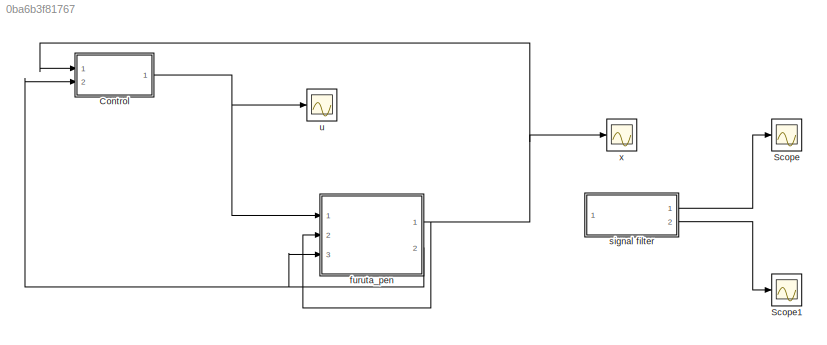
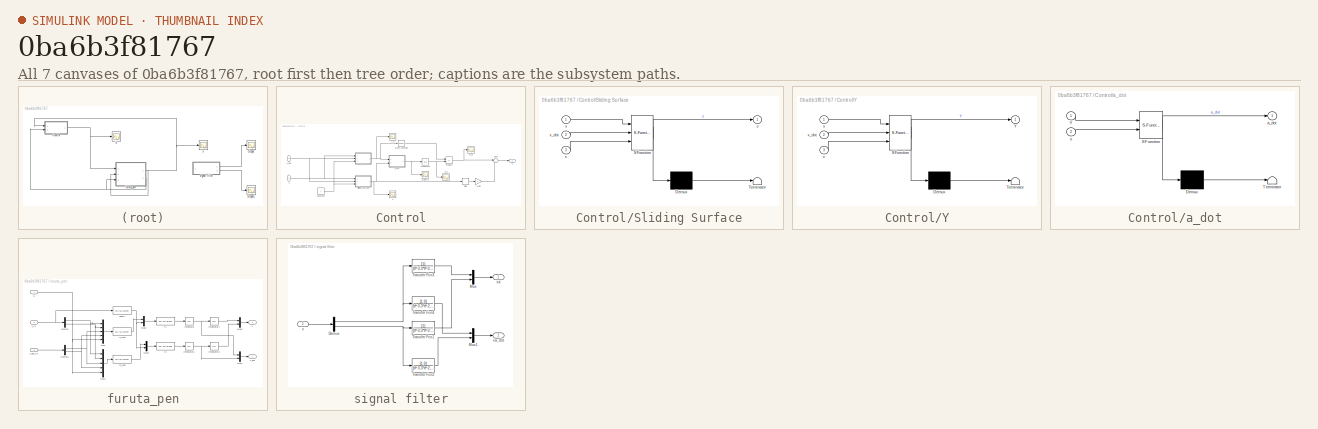
[diagram: thumbnail index - all 7 canvases of the model, root first then tree order]
MODEL slx_0ba6b3f81767
KIND model
CONFIG AbsTol = auto
CONFIG FixedStep = auto
CONFIG MaxStep = auto
CONFIG MinStep = auto
CONFIG RelTol = 1e-3
CONFIG SampleTimeConstraint = Unconstrained
CONFIG Solver = ode45
CONFIG SolverMode = Auto
CONFIG SolverName = ode45
CONFIG StartTime = 0.0
CONFIG StopTime = 5
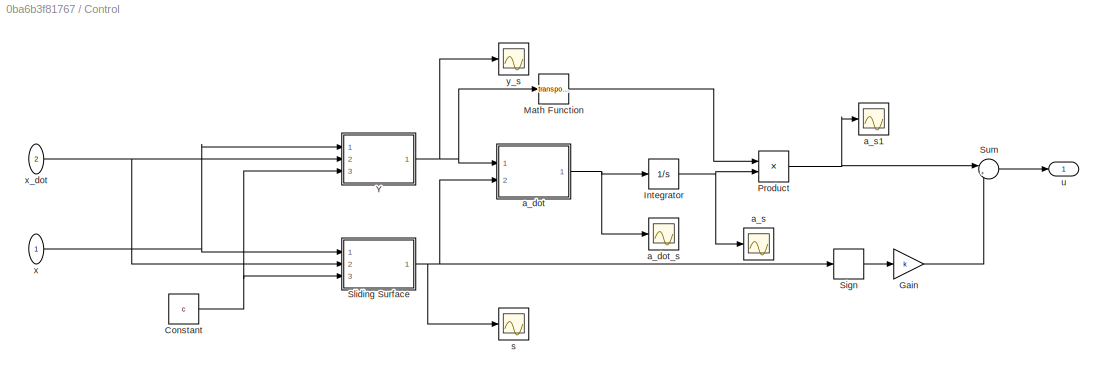
BLOCK [SubSystem] Control
  Ports = [2, 1]
  RequestExecContextInheritance = off
BLOCK [Constant] Control/Constant
  Value = c
BLOCK [Gain] Control/Gain
  Gain = k
  OutDataTypeStr = Inherit: Inherit via internal rule
  ParamDataTypeStr = Inherit: Inherit via internal rule
  SaturateOnIntegerOverflow = off
BLOCK [Integrator] Control/Integrator
  InitialCondition = [0.5;0.5;0.5;0.5]
  Ports = [1, 1]
BLOCK [Math] Control/Math Function
  Operator = transpose
  Ports = [1, 1]
BLOCK [Product] Control/Product
  InputSameDT = off
  Multiplication = Matrix(*)
  OutDataTypeStr = Inherit: Inherit via internal rule
  Ports = [2, 1]
  RndMeth = Floor
  SaturateOnIntegerOverflow = off
BLOCK [Signum] Control/Sign
BLOCK [SubSystem] Control/Sliding Surface
  ErrorFcn = Stateflow.Translate.translate
  PermitHierarchicalResolution = ExplicitOnly
  Ports = [3, 1]
  RequestExecContextInheritance = off
  SFBlockType = MATLAB Function
  TreatAsAtomicUnit = on
BLOCK [Demux] Control/Sliding Surface/ Demux 
  Outputs = 1
  Ports = [1, 1]
BLOCK [S-Function] Control/Sliding Surface/ SFunction 
  EnableBusSupport = on
  FunctionName = sf_sfun
  PortCounts = [3 2]
  Ports = [3, 2]
  Tag = Stateflow S-Function filter_test 2
BLOCK [Terminator] Control/Sliding Surface/ Terminator 
BLOCK [Inport] Control/Sliding Surface/c
  IconDisplay = Port number
  Port = 3
BLOCK [Outport] Control/Sliding Surface/s
  IconDisplay = Port number
BLOCK [Inport] Control/Sliding Surface/x
  IconDisplay = Port number
BLOCK [Inport] Control/Sliding Surface/x_dot
  IconDisplay = Port number
  Port = 2
BLOCK [Sum] Control/Sum
  IconShape = round
  InputSameDT = off
  Inputs = |+-
  OutDataTypeStr = Inherit: Inherit via internal rule
  Ports = [2, 1]
  SaturateOnIntegerOverflow = off
BLOCK [SubSystem] Control/Y
  ErrorFcn = Stateflow.Translate.translate
  PermitHierarchicalResolution = ExplicitOnly
  Ports = [3, 1]
  RequestExecContextInheritance = off
  SFBlockType = MATLAB Function
  TreatAsAtomicUnit = on
BLOCK [Demux] Control/Y/ Demux 
  Outputs = 1
  Ports = [1, 1]
BLOCK [S-Function] Control/Y/ SFunction 
  EnableBusSupport = on
  FunctionName = sf_sfun
  PortCounts = [3 2]
  Ports = [3, 2]
  Tag = Stateflow S-Function filter_test 1
BLOCK [Terminator] Control/Y/ Terminator 
BLOCK [Outport] Control/Y/Y
  IconDisplay = Port number
BLOCK [Inport] Control/Y/c
  IconDisplay = Port number
  Port = 3
BLOCK [Inport] Control/Y/x
  IconDisplay = Port number
BLOCK [Inport] Control/Y/x_dot
  IconDisplay = Port number
  Port = 2
BLOCK [SubSystem] Control/a_dot
  ErrorFcn = Stateflow.Translate.translate
  PermitHierarchicalResolution = ExplicitOnly
  Ports = [2, 1]
  RequestExecContextInheritance = off
  SFBlockType = MATLAB Function
  TreatAsAtomicUnit = on
BLOCK [Demux] Control/a_dot/ Demux 
  Outputs = 1
  Ports = [1, 1]
BLOCK [S-Function] Control/a_dot/ SFunction 
  EnableBusSupport = on
  FunctionName = sf_sfun
  PortCounts = [2 2]
  Ports = [2, 2]
  Tag = Stateflow S-Function filter_test 3
BLOCK [Terminator] Control/a_dot/ Terminator 
BLOCK [Inport] Control/a_dot/Y
  IconDisplay = Port number
BLOCK [Outport] Control/a_dot/a_dot
  IconDisplay = Port number
BLOCK [Inport] Control/a_dot/s
  IconDisplay = Port number
  Port = 2
BLOCK [Scope] Control/a_dot_s
  Floating = off
  LimitDataPoints = off
  NumInputPorts = 1
  Ports = [1]
  SaveName = ScopeData6
  YMax = 0.175
  YMin = -0.175
BLOCK [Scope] Control/a_s
  Floating = off
  LimitDataPoints = off
  NumInputPorts = 1
  Ports = [1]
  SaveName = ScopeData7
  YMax = 0.504
  YMin = 0.491
BLOCK [Scope] Control/a_s1
  Floating = off
  LimitDataPoints = off
  NumInputPorts = 1
  Ports = [1]
  SaveName = ScopeData8
  YMax = 0.504
  YMin = 0.491
BLOCK [Scope] Control/s
  Floating = off
  LimitDataPoints = off
  NumInputPorts = 1
  Ports = [1]
  SaveName = ScopeData5
  YMax = 0.175
  YMin = -0.175
BLOCK [Outport] Control/u
  IconDisplay = Port number
BLOCK [Inport] Control/x
  IconDisplay = Port number
BLOCK [Inport] Control/x_dot
  IconDisplay = Port number
  Port = 2
BLOCK [Scope] Control/y_s
  Floating = off
  LimitDataPoints = off
  NumInputPorts = 1
  Ports = [1]
  SaveName = ScopeData4
  YMax = 0.175
  YMin = -0.175
  ZoomMode = yonly
BLOCK [Scope] Scope
  Floating = off
  NumInputPorts = 1
  Ports = [1]
  YMax = 5.25
  YMin = -0.5
BLOCK [Scope] Scope1
  Floating = off
  NumInputPorts = 1
  Ports = [1]
  SaveName = ScopeData1
  TimeRange = 5
  YMax = 27.5
  YMin = -20
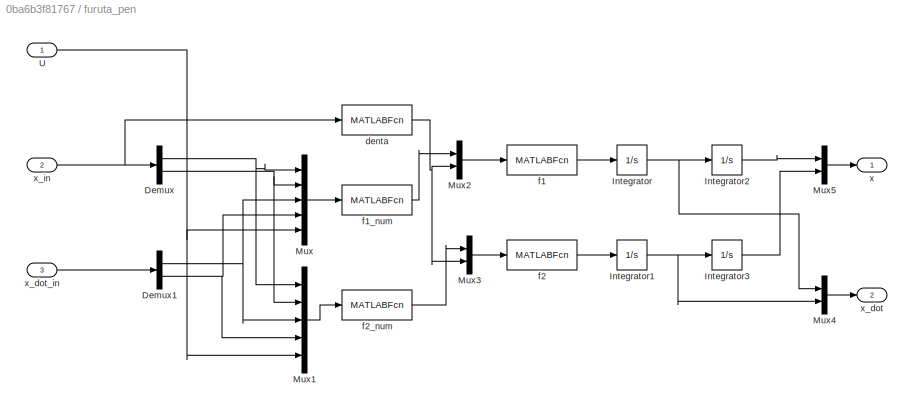
BLOCK [SubSystem] furuta_pen
  Ports = [3, 2]
  RequestExecContextInheritance = off
BLOCK [Demux] furuta_pen/Demux
  DisplayOption = bar
  Outputs = 2
  Ports = [1, 2]
BLOCK [Demux] furuta_pen/Demux1
  DisplayOption = bar
  Outputs = 2
  Ports = [1, 2]
BLOCK [Integrator] furuta_pen/Integrator
  Ports = [1, 1]
BLOCK [Integrator] furuta_pen/Integrator1
  Ports = [1, 1]
BLOCK [Integrator] furuta_pen/Integrator2
  InitialCondition = theta_0*pi/180
  Ports = [1, 1]
BLOCK [Integrator] furuta_pen/Integrator3
  InitialCondition = anpha_0/180*pi
  Ports = [1, 1]
BLOCK [Mux] furuta_pen/Mux
  DisplayOption = bar
  Inputs = 5
  Ports = [5, 1]
BLOCK [Mux] furuta_pen/Mux1
  DisplayOption = bar
  Inputs = 5
  Ports = [5, 1]
BLOCK [Mux] furuta_pen/Mux2
  DisplayOption = bar
  Inputs = 2
  Ports = [2, 1]
BLOCK [Mux] furuta_pen/Mux3
  DisplayOption = bar
  Inputs = 2
  Ports = [2, 1]
BLOCK [Mux] furuta_pen/Mux4
  DisplayOption = bar
  Inputs = 2
  Ports = [2, 1]
BLOCK [Mux] furuta_pen/Mux5
  DisplayOption = bar
  Inputs = 2
  Ports = [2, 1]
BLOCK [Inport] furuta_pen/U
  IconDisplay = Port number
BLOCK [MATLABFcn] furuta_pen/denta
  MATLABFcn = J0*J1+m1^2*L1^4*sin(u(2))^2+m1^2*L0^2*L1^2+J0*m1*L1^2+J1*m1*L0^2+J1*m1*L1^2*sin(u(2))^2-m1^2*L0^2*L1^2*cos(u(2))^2
  OutputDimensions = 1
  Ports = [1, 1]
BLOCK [MATLABFcn] furuta_pen/f1
  MATLABFcn = u(1)/u(2)
  OutputDimensions = 1
  Ports = [1, 1]
BLOCK [MATLABFcn] furuta_pen/f1_num
  MATLABFcn = m1*L0*L1*cos(u(2))*(0.5*m1*L1^2*sin(2*u(2))*u(3)^2+m1*g*L1*sin(u(2))-beta1*u(4))-(m1*L1^2+J1)*(m1*L1^2*sin(2*u(2))*u(3)*u(4)+m1*L0*L1*sin(u(2))*u(4)^2-u(5)+beta0*u(3))
  OutputDimensions = 1
  Ports = [1, 1]
BLOCK [MATLABFcn] furuta_pen/f2
  MATLABFcn = u(1)/u(2)
  OutputDimensions = 1
  Ports = [1, 1]
BLOCK [MATLABFcn] furuta_pen/f2_num
  MATLABFcn = (m1*L0^2+m1*L1^2*sin(u(2))^2+J0)*(0.5*m1*L1^2*sin(2*u(2))*u(3)^2+m1*g*L1*sin(u(2))-beta1*u(4))-m1*L0*L1*cos(u(2))*(m1*L1^2*sin(2*u(2))*u(3)*u(4)+m1*L0*L1*sin(u(2))*u(4)^2-u(5)+beta0*u(3))
  OutputDimensions = 1
  Ports = [1, 1]
BLOCK [Outport] furuta_pen/x
  IconDisplay = Port number
BLOCK [Outport] furuta_pen/x_dot
  IconDisplay = Port number
  Port = 2
BLOCK [Inport] furuta_pen/x_dot_in
  IconDisplay = Port number
  Port = 3
BLOCK [Inport] furuta_pen/x_in
  IconDisplay = Port number
  Port = 2
BLOCK [SubSystem] signal filter
  Ports = [1, 2]
  RequestExecContextInheritance = off
BLOCK [Demux] signal filter/Demux
  DisplayOption = bar
  Outputs = 2
  Ports = [1, 2]
BLOCK [Mux] signal filter/Mux
  DisplayOption = bar
  Inputs = 2
  Ports = [2, 1]
BLOCK [Mux] signal filter/Mux1
  DisplayOption = bar
  Inputs = 2
  Ports = [2, 1]
BLOCK [TransferFcn] signal filter/Transfer Fcn1
  Denominator = [tf^3,3*tf^2,3*tf,1]
BLOCK [TransferFcn] signal filter/Transfer Fcn2
  Denominator = [tf^3,3*tf^2,3*tf,1]
  Numerator = [1 0]
BLOCK [TransferFcn] signal filter/Transfer Fcn3
  Denominator = [tf^3,3*tf^2,3*tf,1]
BLOCK [TransferFcn] signal filter/Transfer Fcn4
  Denominator = [tf^3,3*tf^2,3*tf,1]
  Numerator = [1 0]
BLOCK [Inport] signal filter/x
  IconDisplay = Port number
BLOCK [Outport] signal filter/xa
  IconDisplay = Port number
BLOCK [Outport] signal filter/xa_dot
  IconDisplay = Port number
  Port = 2
BLOCK [Scope] u
  Floating = off
  LimitDataPoints = off
  NumInputPorts = 1
  Ports = [1]
  SaveName = ScopeData3
  YMax = 3
  YMin = -4.5
BLOCK [Scope] x
  Floating = off
  LimitDataPoints = off
  NumInputPorts = 1
  Ports = [1]
  SaveName = ScopeData2
  YMax = 0.25
  YMin = -4.5
NET Control/Constant:1 -> Control/Sliding Surface:3, Control/Y:3
LINE Control/Gain:1 -> Control/Sum:2
NET Control/Integrator:1 -> Control/Product:2, Control/a_s:1
LINE Control/Math Function:1 -> Control/Product:1
NET Control/Product:1 -> Control/Sum:1, Control/a_s1:1
LINE Control/Sign:1 -> Control/Gain:1
NET Control/Sliding Surface:1 -> Control/Sign:1, Control/a_dot:2, Control/s:1
LINE Control/Sum:1 -> Control/u:1
NET Control/Y:1 -> Control/Math Function:1, Control/a_dot:1, Control/y_s:1
NET Control/a_dot:1 -> Control/Integrator:1, Control/a_dot_s:1
NET Control/x:1 -> Control/Sliding Surface:1, Control/Y:1
NET Control/x_dot:1 -> Control/Sliding Surface:2, Control/Y:2
NET Control:1 -> furuta_pen:1, u:1
NET furuta_pen/Demux1:1 -> furuta_pen/Mux1:3, furuta_pen/Mux:3
NET furuta_pen/Demux1:2 -> furuta_pen/Mux1:4, furuta_pen/Mux:4
NET furuta_pen/Demux:1 -> furuta_pen/Mux1:1, furuta_pen/Mux:1
NET furuta_pen/Demux:2 -> furuta_pen/Mux1:2, furuta_pen/Mux:2
NET furuta_pen/Integrator1:1 -> furuta_pen/Integrator3:1, furuta_pen/Mux4:2
LINE furuta_pen/Integrator2:1 -> furuta_pen/Mux5:1
LINE furuta_pen/Integrator3:1 -> furuta_pen/Mux5:2
NET furuta_pen/Integrator:1 -> furuta_pen/Integrator2:1, furuta_pen/Mux4:1
LINE furuta_pen/Mux1:1 -> furuta_pen/f2_num:1
LINE furuta_pen/Mux2:1 -> furuta_pen/f1:1
LINE furuta_pen/Mux3:1 -> furuta_pen/f2:1
LINE furuta_pen/Mux4:1 -> furuta_pen/x_dot:1
LINE furuta_pen/Mux5:1 -> furuta_pen/x:1
LINE furuta_pen/Mux:1 -> furuta_pen/f1_num:1
NET furuta_pen/U:1 -> furuta_pen/Mux1:5, furuta_pen/Mux:5
NET furuta_pen/denta:1 -> furuta_pen/Mux2:2, furuta_pen/Mux3:2
LINE furuta_pen/f1:1 -> furuta_pen/Integrator:1
LINE furuta_pen/f1_num:1 -> furuta_pen/Mux2:1
LINE furuta_pen/f2:1 -> furuta_pen/Integrator1:1
LINE furuta_pen/f2_num:1 -> furuta_pen/Mux3:1
LINE furuta_pen/x_dot_in:1 -> furuta_pen/Demux1:1
NET furuta_pen/x_in:1 -> furuta_pen/Demux:1, furuta_pen/denta:1
NET furuta_pen:1 -> Control:1, furuta_pen:2, x:1
NET furuta_pen:2 -> Control:2, furuta_pen:3
NET signal filter/Demux:1 -> signal filter/Transfer Fcn3:1, signal filter/Transfer Fcn4:1
NET signal filter/Demux:2 -> signal filter/Transfer Fcn1:1, signal filter/Transfer Fcn2:1
LINE signal filter/Mux1:1 -> signal filter/xa_dot:1
LINE signal filter/Mux:1 -> signal filter/xa:1
LINE signal filter/Transfer Fcn1:1 -> signal filter/Mux:2
LINE signal filter/Transfer Fcn2:1 -> signal filter/Mux1:2
LINE signal filter/Transfer Fcn3:1 -> signal filter/Mux:1
LINE signal filter/Transfer Fcn4:1 -> signal filter/Mux1:1
LINE signal filter/x:1 -> signal filter/Demux:1
LINE signal filter:1 -> Scope:1
LINE signal filter:2 -> Scope1:1
note: NET lines group one-source signal fan-out (src -> all destinations, sorted); 1:1 wires keep LINE
CHART Control/Y states=1 transitions=1
  STATE_LABEL 'eML_blk_kernel()'
  STATE_LABEL 'SCRIPT:\nfunction Y = fnc(x,x_dot,c)\n%#codegen\n\nY = [-c*x_dot(2);x_dot(2);x(2);x_dot(1)];'
CHART Control/Sliding Surface states=1 transitions=1
  STATE_LABEL 'eML_blk_kernel()'
  STATE_LABEL 'SCRIPT:\nfunction s = fcn(x,x_dot,c)\n%#codegen\ns = x_dot(2)+c*x(2);'
CHART Control/a_dot states=1 transitions=1
  STATE_LABEL 'eML_blk_kernel()'
  STATE_LABEL 'SCRIPT:\nfunction a_dot = fnc(Y,s)\n%#codegen\nro = 100*eye(4);\na_dot = -ro^(-1)*Y*s;'
